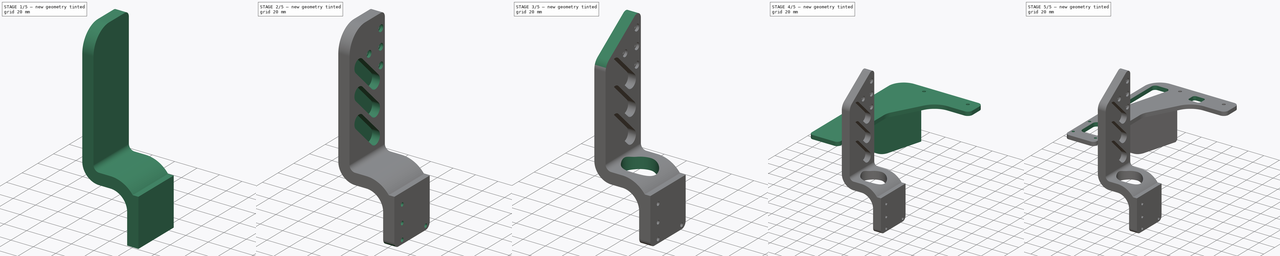
[diagram: build sequence overview — one tinted view per stage of 5, left to right]
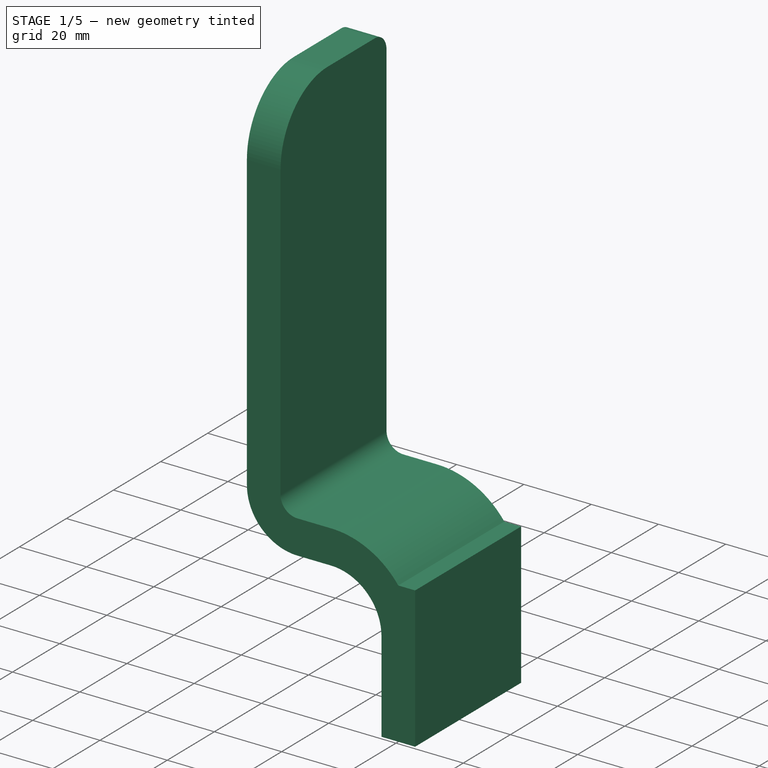
[diagram: stage 1 of 5 — iso view after this stage's code; geometry added in this stage tinted green]
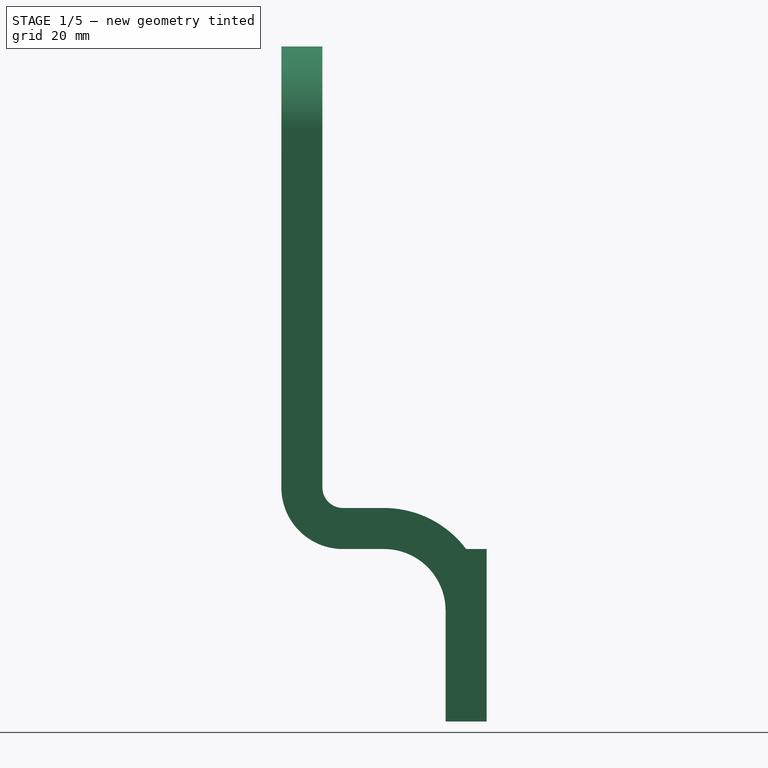
[diagram: stage 1 of 5 — front view after this stage's code; geometry added in this stage tinted green]
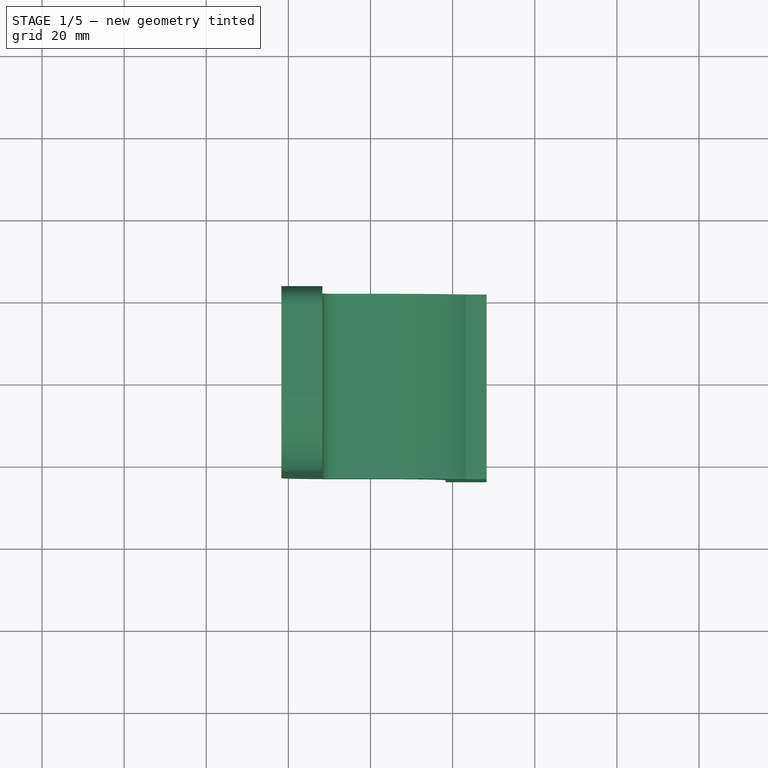
[diagram: stage 1 of 5 — top view after this stage's code; geometry added in this stage tinted green]
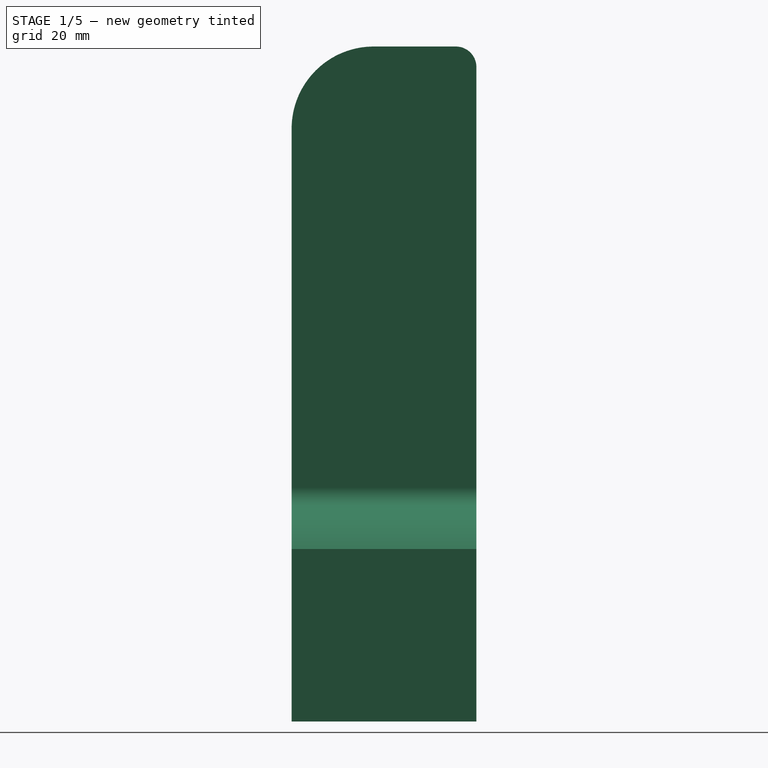
[diagram: stage 1 of 5 — right view after this stage's code; geometry added in this stage tinted green]
FCSTD DOCUMENT  (FreeCAD 0.21R33771 (Git))
Label: DD_005a_5Axis_Arms
License: All rights reserved
LicenseURL: http://en.wikipedia.org/wiki/All_rights_reserved
objects: Sketcher::SketchObject×14, PartDesign::Fillet×8, PartDesign::Pocket×4, PartDesign::Pad×3, PartDesign::Hole×3, PartDesign::SubShapeBinder×2, PartDesign::Chamfer×2, PartDesign::Body×2, PartDesign::AdditivePipe×1, PartDesign::LinearPattern×1
note: 61 computed .brp shape members not serialized (recipe doc carries the construction recipe); baked Part::Feature solids carry a one-line shape summary decoded from their .brp

FEATURE [Sketcher::SketchObject] Sketch004
  FullyConstrained = true
  MapMode = 5
  Placement = pos=(150.634,-41.8883,0) rot=(-0.47331,0.622887,0.622887;4.02573rad)
  Support = -> [Pocket]
FEATURE [PartDesign::Body] Body  label="Zfix"
  Group = -> [Binder,Sketch,Pad,Fillet,Sketch001,Pad001,Chamfer,Fillet001,Chamfer001,Fillet002,Sketch002,Hole,Sketch003,Pocket,Sketch004]
  Origin = -> Origin
  Tip = -> Pocket
FEATURE [Sketcher::SketchObject] Sketch005
  ExternalGeometry = -> [Binder001]
  FullyConstrained = true
  MapMode = 5
  Placement = pos=(208.293,6e-16,2.65251e-06) rot=(0.57735,-0.57735,-0.57735;2.0944rad)
  Support = -> [Binder001]
  sketch-geometry (4):
    g0: LineSegment StartX=183.724 StartY=175.56 StartZ=0 EndX=138.724 EndY=175.56 EndZ=0
    g1: LineSegment StartX=138.724 StartY=175.56 StartZ=0 EndX=138.724 EndY=133.56 EndZ=0
    g2: LineSegment StartX=138.724 StartY=133.56 StartZ=0 EndX=183.724 EndY=133.56 EndZ=0
    g3: LineSegment StartX=183.724 StartY=133.56 StartZ=0 EndX=183.724 EndY=175.56 EndZ=0
  constraints (11):
    c: Coincident(g0,g1)
    c: Coincident(g1,g2)
    c: Coincident(g2,g3)
    c: Coincident(g3,g0)
    c: Horizontal(g0)
    c: Horizontal(g2)
    c: Vertical(g1)
    c: Vertical(g3)
    c: Coincident(g0,g-4)
    c: PointOnObject(g1,g-3)
    c: DistanceX(g0,g0) = 45
FEATURE [PartDesign::Pad] Pad002
  Direction = (-1,2e-16,-1.27346e-08)
  Length = 10
  Length2 = 10
  Profile = -> Sketch005
  ReferenceAxis = -> Sketch005 [N_Axis]
  Type = 0
FEATURE [Sketcher::SketchObject] Sketch006
  ExternalGeometry = -> [Pad002,Binder001]
  FullyConstrained = false
  MapMode = 5
  Placement = pos=(-4.04e-14,-183.724,0) rot=(1,0,0;1.5708rad)
  Support = -> [Pad002]
  sketch-geometry (7):
    g0: LineSegment StartX=198.293 StartY=157.562 StartZ=0 EndX=198.293 EndY=160.56 EndZ=0
    g1: LineSegment StartX=183.293 StartY=175.56 StartZ=0 EndX=173.293 EndY=175.56 EndZ=0
    g2: LineSegment StartX=158.293 StartY=190.56 StartZ=0 EndX=158.293 EndY=297.948 EndZ=0
    g3: ArcOfCircle CenterX=183.293 CenterY=160.56 CenterZ=0 NormalX=0 NormalY=0 NormalZ=1 AngleXU=0 Radius=15 StartAngle=7e-16 EndAngle=1.5708
    g4: GeomPoint X=198.293 Y=175.56 Z=0
    g5: ArcOfCircle CenterX=173.293 CenterY=190.56 CenterZ=0 NormalX=0 NormalY=0 NormalZ=1 AngleXU=0 Radius=15 StartAngle=3.14159 EndAngle=4.71239
    g6: GeomPoint X=158.293 Y=175.56 Z=0
  constraints (15):
    c: Coincident(g4,g-3)
    c: Vertical(g0)
    c: Vertical(g2)
    c: Horizontal(g1)
    c: Vertical(g-4,g2)
    c: PointOnObject(g4,g0)
    c: PointOnObject(g4,g1)
    c: Tangent(g0,g3) = -1.5708
    c: Tangent(g1,g3) = -1.5708
    c: PointOnObject(g6,g1)
    c: PointOnObject(g6,g2)
    c: Tangent(g1,g5) = 1.5708
    c: Tangent(g2,g5) = 1.5708
    c: Equal(g5,g3)
    c: Radius(g3) = 15
FEATURE [Sketcher::SketchObject] Sketch007
  AttachmentOffset = pos=(0,0,-18) rot=(0,0,1;0rad)
  ExternalGeometry = -> [Pad002]
  FullyConstrained = true
  MapMode = 5
  Placement = pos=(-2.00646e-06,0,157.56) rot=(0,0,1;0rad)
  Support = -> [Pad002]
  sketch-geometry (4):
    g0: LineSegment StartX=208.293 StartY=-138.724 StartZ=0 EndX=198.293 EndY=-138.724 EndZ=0
    g1: LineSegment StartX=198.293 StartY=-138.724 StartZ=0 EndX=198.293 EndY=-183.724 EndZ=0
    g2: LineSegment StartX=198.293 StartY=-183.724 StartZ=0 EndX=208.293 EndY=-183.724 EndZ=0
    g3: LineSegment StartX=208.293 StartY=-183.724 StartZ=0 EndX=208.293 EndY=-138.724 EndZ=0
  constraints (10):
    c: Coincident(g0,g1)
    c: Coincident(g1,g2)
    c: Coincident(g2,g3)
    c: Coincident(g3,g0)
    c: Horizontal(g0)
    c: Horizontal(g2)
    c: Vertical(g1)
    c: Vertical(g3)
    c: Coincident(g0,g-3)
    c: Coincident(g1,g-4)
FEATURE [PartDesign::AdditivePipe] AdditivePipe
  AuxilleryCurvelinear = true
  AuxillerySpineTangent = false
  BaseFeature = -> Pad002
  Binormal = (0,0,0)
  Mode = 0
  Profile = -> Sketch007
  Spine = -> Sketch006
  SpineTangent = false
  Transformation = 0
  Transition = 0
FEATURE [PartDesign::Fillet] Fillet003
  Base = -> AdditivePipe [Edge61]
  BaseFeature = -> AdditivePipe
  Radius = 20
  SupportTransform = false
  UseAllEdges = false
FEATURE [PartDesign::Fillet] Fillet004
  Base = -> Fillet003 [Edge15]
  BaseFeature = -> Fillet003
  Radius = 5
  SupportTransform = false
  UseAllEdges = false
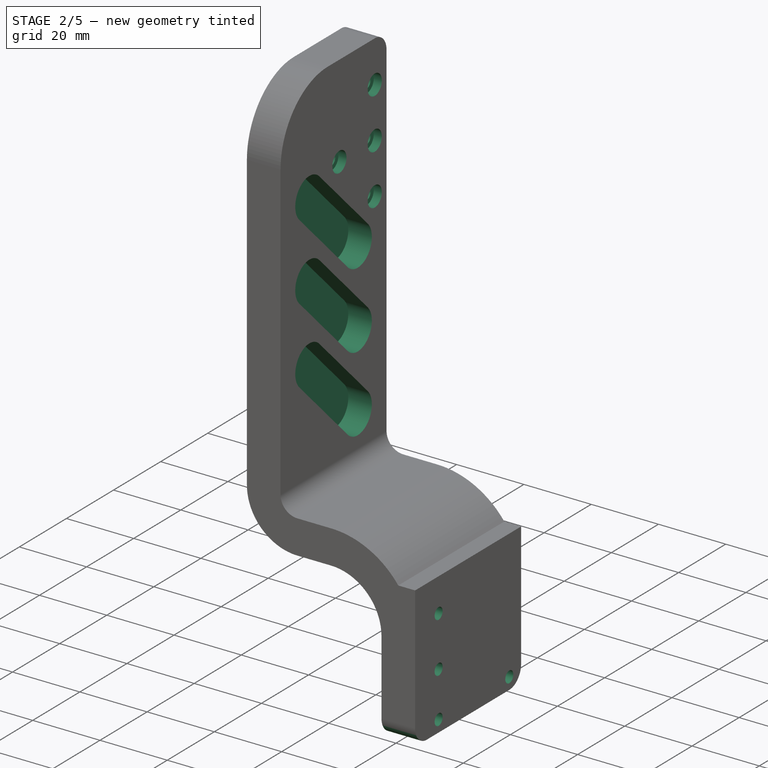
[diagram: stage 2 of 5 — iso view after this stage's code; geometry added in this stage tinted green]
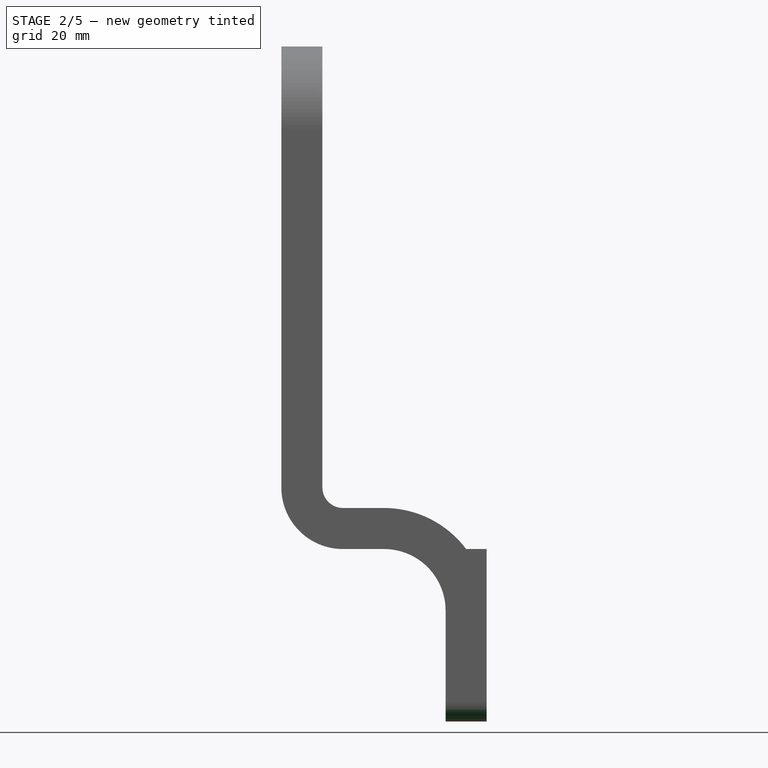
[diagram: stage 2 of 5 — front view after this stage's code; geometry added in this stage tinted green]
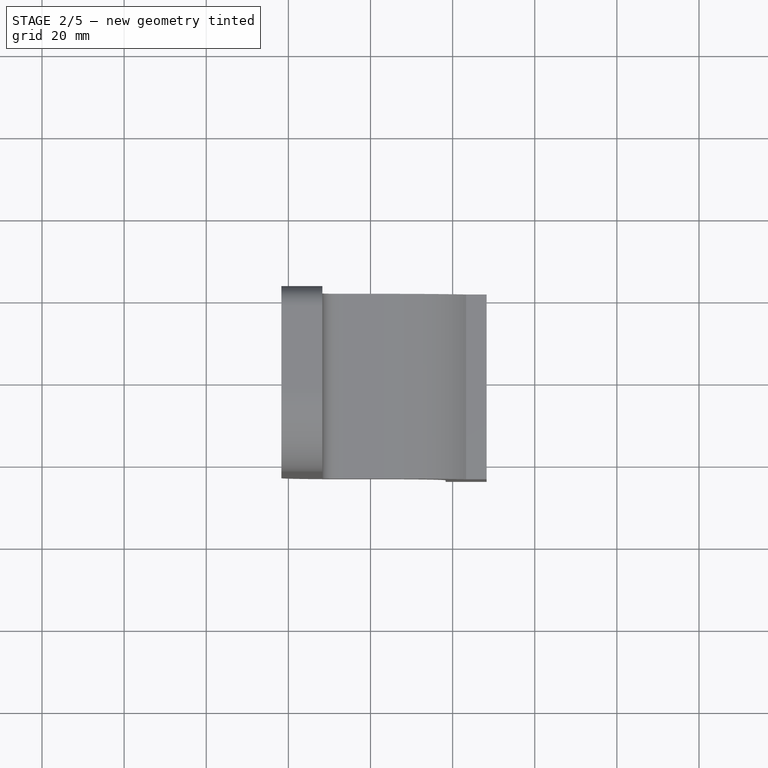
[diagram: stage 2 of 5 — top view after this stage's code; geometry added in this stage tinted green]
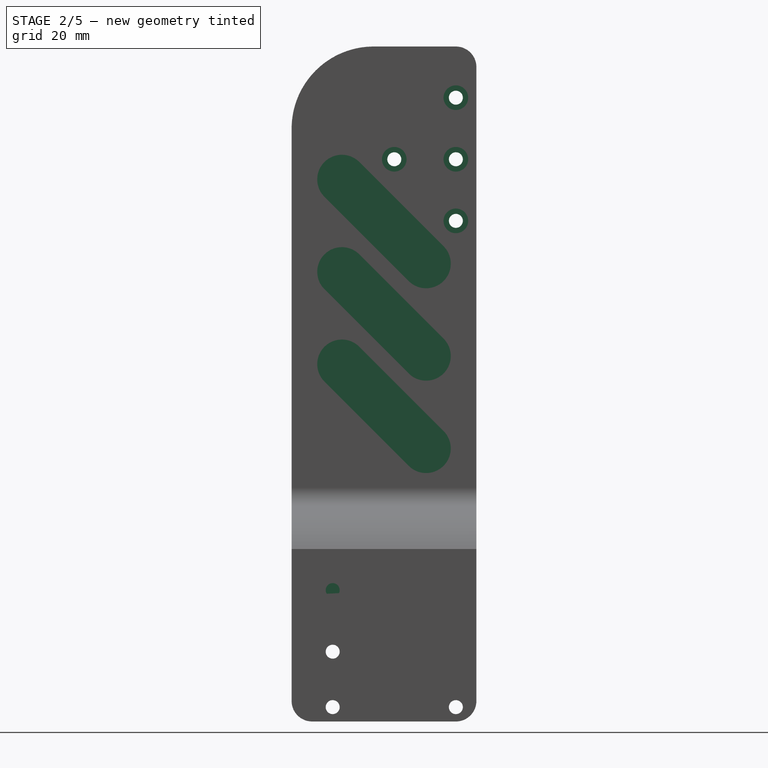
[diagram: stage 2 of 5 — right view after this stage's code; geometry added in this stage tinted green]
FEATURE [PartDesign::Fillet] Fillet005
  Base = -> Fillet004 [Edge67,Edge69]
  BaseFeature = -> Fillet004
  Radius = 5
  SupportTransform = false
  UseAllEdges = false
FEATURE [Sketcher::SketchObject] Sketch008
  FullyConstrained = true
  MapMode = 5
  Placement = pos=(0,-183.724,0) rot=(1,0,0;1.5708rad)
  Support = -> [Fillet005]
FEATURE [Sketcher::SketchObject] Sketch009
  ExternalGeometry = -> [Binder001]
  FullyConstrained = false
  MapMode = 5
  Placement = pos=(198.293,0,2.52517e-06) rot=(0.57735,-0.57735,-0.57735;2.0944rad)
  Support = -> [Fillet005]
  sketch-geometry (4):
    g0: Circle CenterX=173.724 CenterY=165.56 CenterZ=0 NormalX=0 NormalY=0 NormalZ=1 AngleXU=0 Radius=0.899481
    g1: Circle CenterX=173.724 CenterY=150.56 CenterZ=0 NormalX=0 NormalY=0 NormalZ=1 AngleXU=0 Radius=1.27588
    g2: Circle CenterX=173.724 CenterY=137.06 CenterZ=0 NormalX=0 NormalY=0 NormalZ=1 AngleXU=0 Radius=0.845903
    g3: Circle CenterX=143.724 CenterY=137.06 CenterZ=0 NormalX=0 NormalY=0 NormalZ=1 AngleXU=0 Radius=0.639343
  constraints (4):
    c: Coincident(g0,g-6)
    c: Coincident(g1,g-7)
    c: Coincident(g2,g-5)
    c: Coincident(g3,g-4)
FEATURE [PartDesign::Hole] Hole001
  BaseFeature = -> Fillet005
  CustomThreadClearance = 0
  Depth = 25
  DepthType = 0
  Diameter = 3.4
  DrillForDepth = false
  DrillPoint = 1
  DrillPointAngle = 118
  HoleCutCountersinkAngle = 90
  HoleCutCustomValues = false
  HoleCutDepth = 2.4
  HoleCutDiameter = 6
  HoleCutType = 4
  ModelThread = false
  Profile = -> Sketch009
  Tapered = false
  TaperedAngle = 90
  ThreadClass = 0
  ThreadDepth = 25
  ThreadDepthType = 0
  ThreadDirection = 0
  ThreadFit = 0
  ThreadSize = 9
  ThreadType = 1
  Threaded = false
  UseCustomThreadClearance = false
FEATURE [Sketcher::SketchObject] Sketch010
  ExternalGeometry = -> [Binder001]
  FullyConstrained = false
  MapMode = 5
  Placement = pos=(168.293,0,0) rot=(0.57735,0.57735,0.57735;2.0944rad)
  Support = -> [Hole001]
  sketch-geometry (4):
    g0: Circle CenterX=-143.724 CenterY=285.484 CenterZ=0 NormalX=0 NormalY=0 NormalZ=1 AngleXU=0 Radius=0.961945
    g1: Circle CenterX=-158.724 CenterY=270.484 CenterZ=0 NormalX=0 NormalY=0 NormalZ=1 AngleXU=0 Radius=0.955862
    g2: Circle CenterX=-143.724 CenterY=270.484 CenterZ=0 NormalX=0 NormalY=0 NormalZ=1 AngleXU=0 Radius=0.757311
    g3: Circle CenterX=-143.724 CenterY=255.484 CenterZ=0 NormalX=0 NormalY=0 NormalZ=1 AngleXU=0 Radius=1.35825
  constraints (4):
    c: Coincident(g0,g-3)
    c: Coincident(g1,g-4)
    c: Coincident(g2,g-6)
    c: Coincident(g3,g-5)
FEATURE [PartDesign::Hole] Hole002
  BaseFeature = -> Hole001
  CustomThreadClearance = 0
  Depth = 25
  DepthType = 0
  Diameter = 3.4
  DrillForDepth = false
  DrillPoint = 1
  DrillPointAngle = 118
  HoleCutCountersinkAngle = 90
  HoleCutCustomValues = false
  HoleCutDepth = 2.4
  HoleCutDiameter = 6
  HoleCutType = 4
  ModelThread = false
  Profile = -> Sketch010
  Tapered = false
  TaperedAngle = 90
  ThreadClass = 0
  ThreadDepth = 25
  ThreadDepthType = 0
  ThreadDirection = 0
  ThreadFit = 0
  ThreadSize = 9
  ThreadType = 1
  Threaded = false
  UseCustomThreadClearance = false
FEATURE [Sketcher::SketchObject] Sketch011
  ExternalGeometry = -> [Hole002]
  FullyConstrained = false
  MapMode = 5
  Placement = pos=(168.293,0,0) rot=(0.57735,0.57735,0.57735;2.0944rad)
  Support = -> [Hole002]
  sketch-geometry (4):
    g0: ArcOfCircle CenterX=-171.481 CenterY=220.581 CenterZ=0 NormalX=0 NormalY=0 NormalZ=1 AngleXU=0 Radius=6 StartAngle=0.785398 EndAngle=3.92699
    g1: ArcOfCircle CenterX=-150.966 CenterY=200.066 CenterZ=0 NormalX=0 NormalY=0 NormalZ=1 AngleXU=0 Radius=6 StartAngle=3.92699 EndAngle=7.06858
    g2: LineSegment StartX=-175.724 StartY=216.338 StartZ=0 EndX=-155.209 EndY=195.824 EndZ=0
    g3: LineSegment StartX=-146.724 StartY=204.309 StartZ=0 EndX=-167.238 EndY=224.824 EndZ=0
  constraints (9):
    c: Tangent(g0,g2) = -1.5708
    c: Tangent(g2,g1) = -1.5708
    c: Tangent(g1,g3) = -1.5708
    c: Tangent(g3,g0) = -1.5708
    c: Equal(g0,g1)
    c: Angle(g-3,g3) = 0.785398
    c: Distance(g1,g-3) = 8
    c: Distance(g0,g-4) = 8
    c: Radius(g1) = 6
FEATURE [PartDesign::Pocket] Pocket001
  BaseFeature = -> Hole002
  Direction = (-1,0,0)
  Length = 7
  Length2 = 5
  Profile = -> Sketch011
  ReferenceAxis = -> Sketch011 [N_Axis]
  Type = 0
FEATURE [PartDesign::LinearPattern] LinearPattern
  BaseFeature = -> Pocket001
  Direction = -> Z_Axis001
  Length = 45
  Occurrences = 3
  Originals = -> [Pocket001]
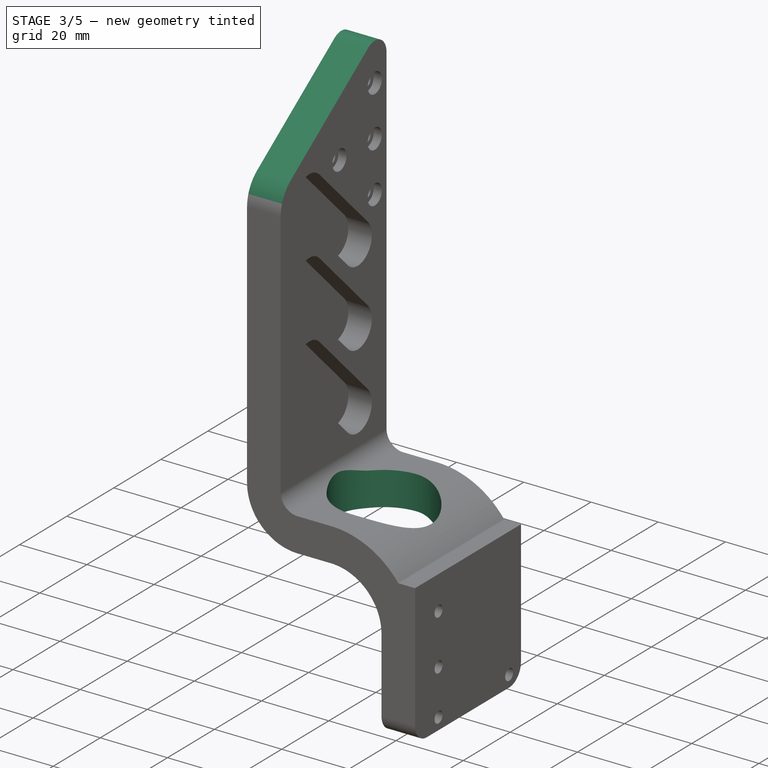
[diagram: stage 3 of 5 — iso view after this stage's code; geometry added in this stage tinted green]
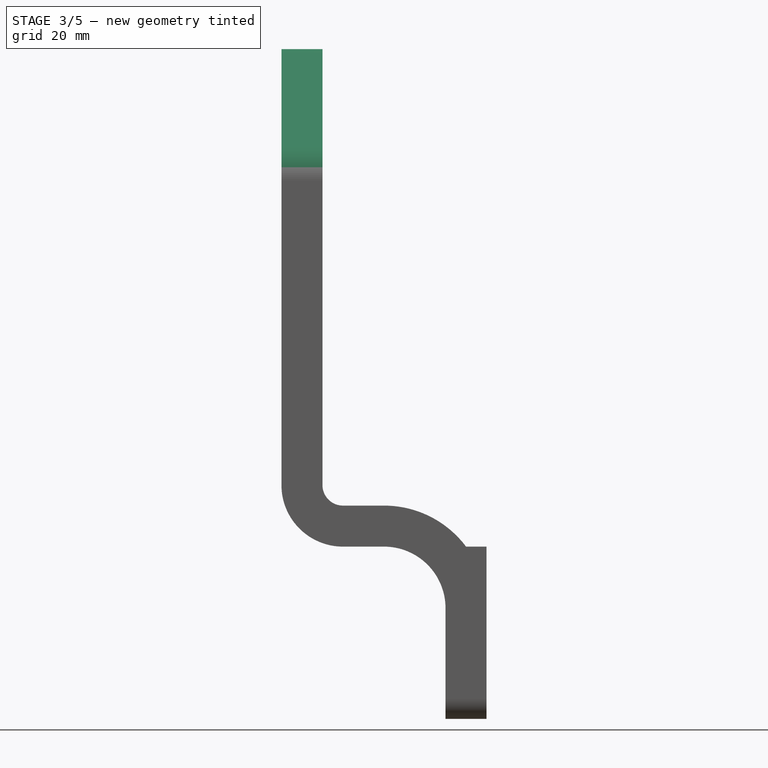
[diagram: stage 3 of 5 — front view after this stage's code; geometry added in this stage tinted green]
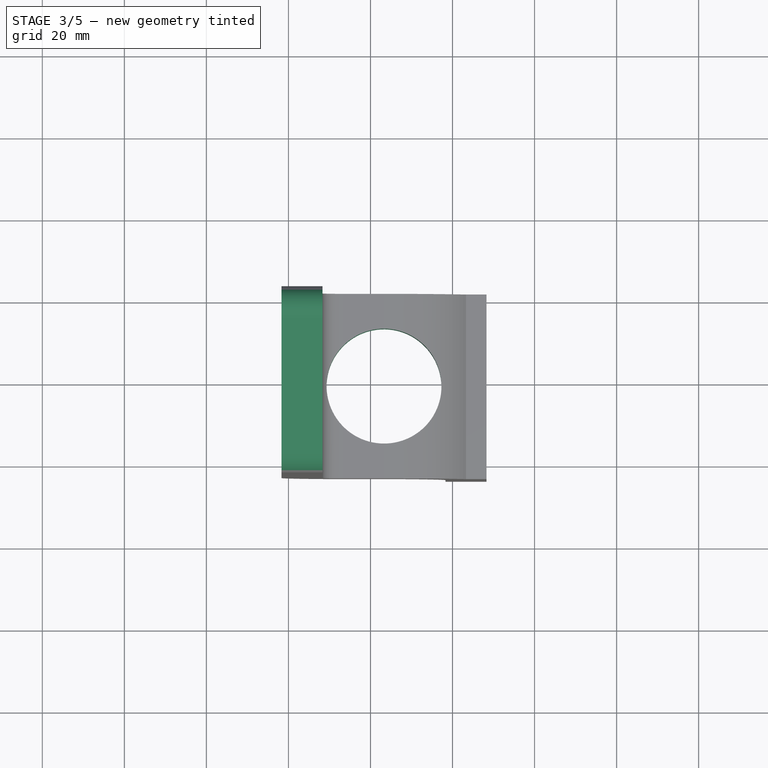
[diagram: stage 3 of 5 — top view after this stage's code; geometry added in this stage tinted green]
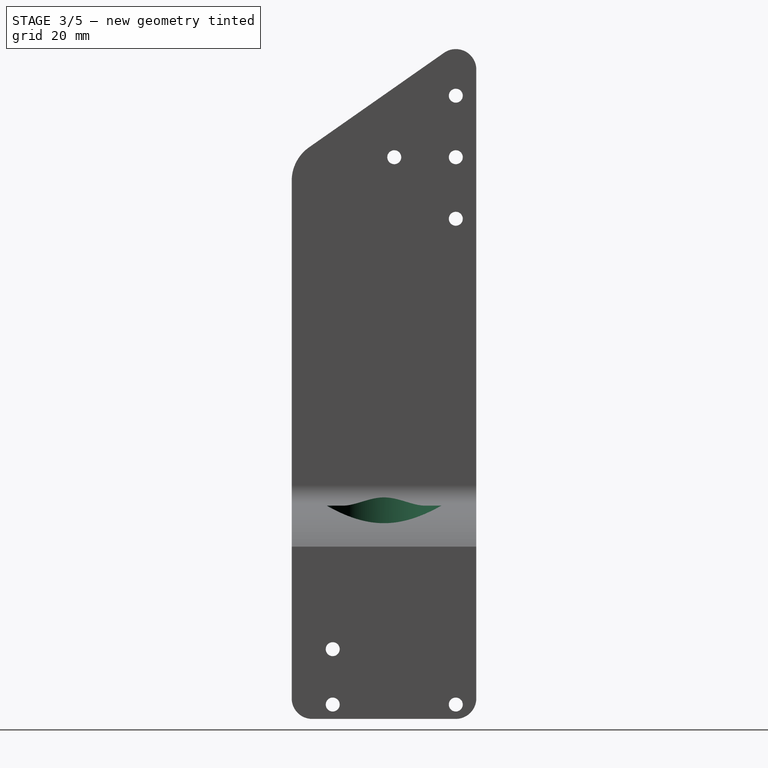
[diagram: stage 3 of 5 — right view after this stage's code; geometry added in this stage tinted green]
FEATURE [Sketcher::SketchObject] Sketch012
  ExternalGeometry = -> [LinearPattern]
  FullyConstrained = false
  MapMode = 5
  Placement = pos=(168.293,0,0) rot=(0.57735,0.57735,0.57735;2.0944rad)
  Support = -> [LinearPattern]
  sketch-geometry (3):
    g0: LineSegment StartX=-143.724 StartY=297.947 StartZ=0 EndX=-183.724 EndY=269.938 EndZ=0
    g1: LineSegment StartX=-183.724 StartY=269.938 StartZ=0 EndX=-199.04 EndY=317.494 EndZ=0
    g2: LineSegment StartX=-143.724 StartY=297.947 StartZ=0 EndX=-199.04 EndY=317.494 EndZ=0
  constraints (6):
    c: Coincident(g0,g-3)
    c: PointOnObject(g0,g-4)
    c: Coincident(g1,g0)
    c: Coincident(g2,g0)
    c: Coincident(g2,g1)
    c: Angle(g0,g-5) = 0.959931
FEATURE [PartDesign::Pocket] Pocket002
  BaseFeature = -> LinearPattern
  Direction = (-1,0,0)
  Length = 5
  Length2 = 5
  Profile = -> Sketch012
  ReferenceAxis = -> Sketch012 [N_Axis]
  Type = 1
FEATURE [PartDesign::Fillet] Fillet006
  Base = -> Pocket002 [Edge95]
  BaseFeature = -> Pocket002
  Radius = 10
  SupportTransform = false
  UseAllEdges = false
FEATURE [PartDesign::Fillet] Fillet007
  Base = -> Fillet006 [Edge13]
  BaseFeature = -> Fillet006
  Radius = 5
  SupportTransform = false
  UseAllEdges = false
FEATURE [Sketcher::SketchObject] Sketch013
  ExternalGeometry = -> [Fillet007]
  FullyConstrained = true
  MapMode = 5
  Placement = pos=(0,8.16e-14,185.56) rot=(0,0,1;0rad)
  Support = -> [Fillet007]
  sketch-geometry (1):
    g0: Circle CenterX=183.294 CenterY=-161.224 CenterZ=0 NormalX=0 NormalY=0 NormalZ=1 AngleXU=0 Radius=14
  constraints (2):
    c: Radius(g0) = 14
    c: Symmetric(g-3,g-3,g0)
FEATURE [PartDesign::Pocket] Pocket003
  BaseFeature = -> Fillet007
  Direction = (0,-4e-16,-1)
  Length = 5
  Length2 = 5
  Midplane = true
  Profile = -> Sketch013
  ReferenceAxis = -> Sketch013 [N_Axis]
  Type = 1
FEATURE [PartDesign::Body] Body001  label="square"
  Group = -> [Binder001,Sketch005,Pad002,Sketch006,Sketch007,AdditivePipe,Fillet003,Fillet004,Fillet005,Sketch008,Sketch009,Hole001,Sketch010,Hole002,Sketch011,Pocket001,LinearPattern,Sketch012,Pocket002,Fillet006,Fillet007,Sketch013,Pocket003]
  Origin = -> Origin001
  Tip = -> Pocket003
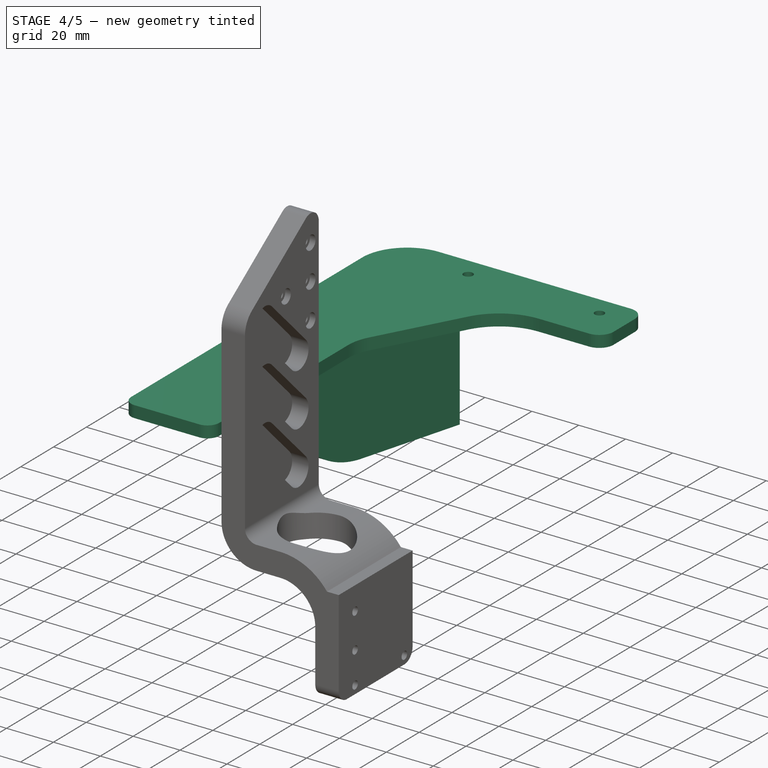
[diagram: stage 4 of 5 — iso view after this stage's code; geometry added in this stage tinted green]
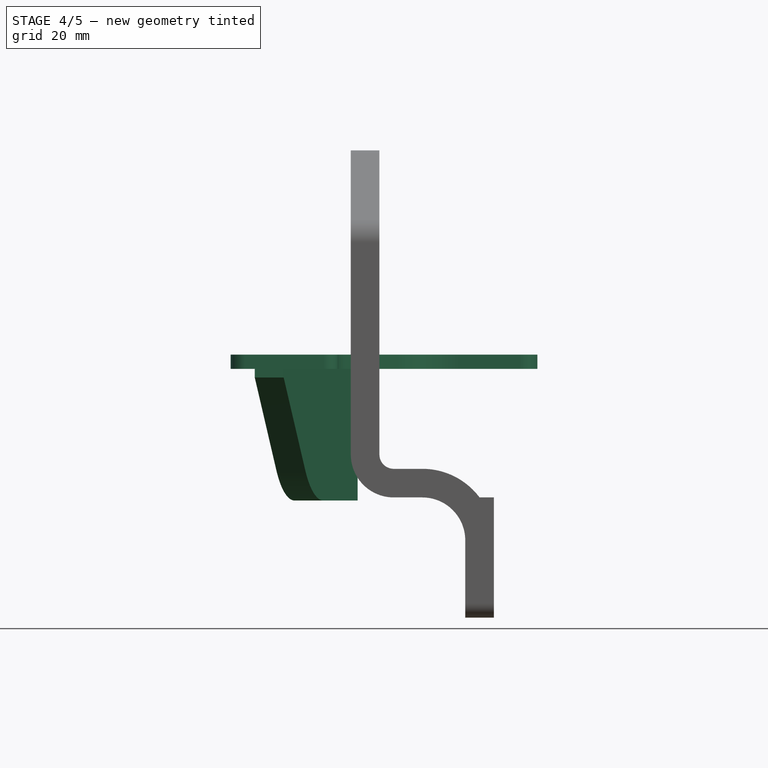
[diagram: stage 4 of 5 — front view after this stage's code; geometry added in this stage tinted green]
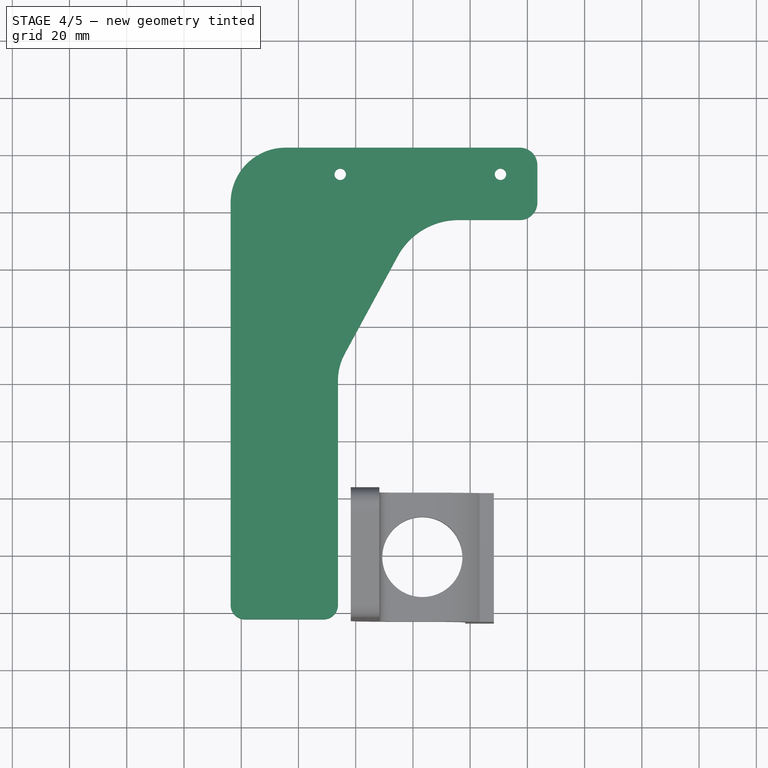
[diagram: stage 4 of 5 — top view after this stage's code; geometry added in this stage tinted green]
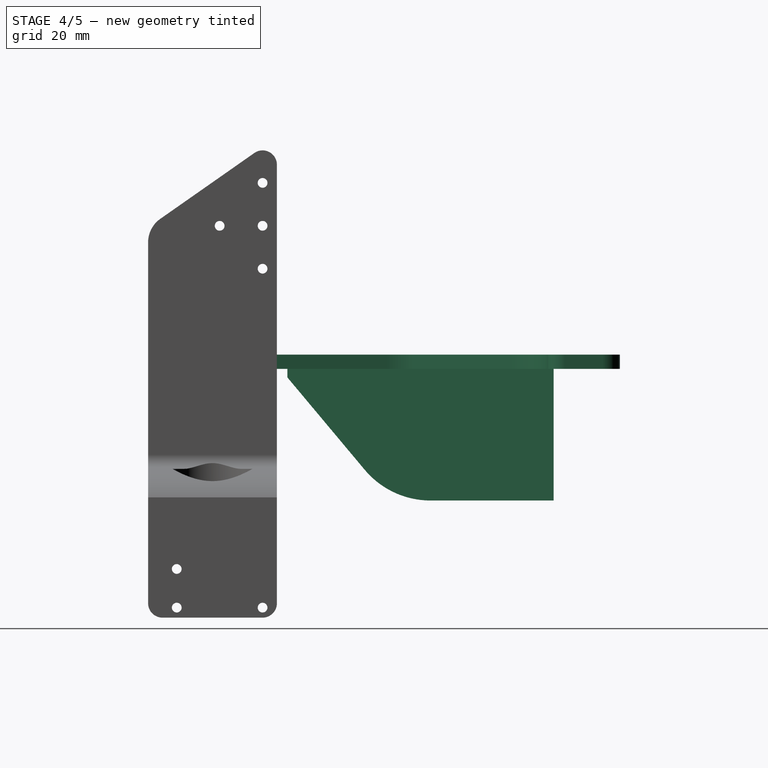
[diagram: stage 4 of 5 — right view after this stage's code; geometry added in this stage tinted green]
FEATURE [PartDesign::SubShapeBinder] Binder
  BindCopyOnChange = 0
  BindMode = 2
  ClaimChildren = false
  Context = -> Body [Binder.]
  Fuse = false
  MakeFace = true
  OffsetFill = false
  OffsetIntersection = false
  OffsetJoinType = 0
  OffsetOpenResult = false
  PartialLoad = false
  Relative = true
  _Version = 2
FEATURE [Sketcher::SketchObject] Sketch
  ExternalGeometry = -> [Binder]
  FullyConstrained = false
  MapMode = 5
  Placement = pos=(0,0,220.484) rot=(0,0,1;0rad)
  Support = -> [Binder]
  sketch-geometry (19):
    g0: Circle CenterX=154.6 CenterY=-28.1604 CenterZ=0 NormalX=0 NormalY=0 NormalZ=1 AngleXU=0 Radius=2
    g1: Circle CenterX=210.6 CenterY=-28.1604 CenterZ=0 NormalX=0 NormalY=0 NormalZ=1 AngleXU=0 Radius=2
    g2: LineSegment StartX=135.526 StartY=-18.8613 StartZ=0 EndX=217.385 EndY=-18.8613 EndZ=0
    g3: LineSegment StartX=223.498 StartY=-24.9748 StartZ=0 EndX=223.498 EndY=-37.9905 EndZ=0
    g4: LineSegment StartX=217.385 StartY=-44.104 StartZ=0 EndX=195.956 EndY=-44.104 EndZ=0
    g5: LineSegment StartX=174.688 StartY=-56.7608 StartZ=0 EndX=156.179 EndY=-90.8709 EndZ=0
    g6: LineSegment StartX=153.803 StartY=-100.231 StartZ=0 EndX=153.803 EndY=-183.724 EndZ=0
    g7: LineSegment StartX=153.803 StartY=-183.724 StartZ=0 EndX=116.293 EndY=-183.724 EndZ=0
    g8: LineSegment StartX=116.293 StartY=-183.724 StartZ=0 EndX=116.293 EndY=-38.0948 EndZ=0
    g9: ArcOfCircle CenterX=135.526 CenterY=-38.0948 CenterZ=0 NormalX=0 NormalY=0 NormalZ=1 AngleXU=0 Radius=19.2334 StartAngle=1.5708 EndAngle=3.14159
    g10: GeomPoint X=116.293 Y=-18.8613 Z=0
    g11: ArcOfCircle CenterX=217.385 CenterY=-24.9748 CenterZ=0 NormalX=0 NormalY=0 NormalZ=1 AngleXU=0 Radius=6.11349 StartAngle=0 EndAngle=1.5708
    g12: GeomPoint X=223.498 Y=-18.8613 Z=0
    g13: ArcOfCircle CenterX=217.385 CenterY=-37.9905 CenterZ=0 NormalX=0 NormalY=0 NormalZ=1 AngleXU=0 Radius=6.11349 StartAngle=4.71239 EndAngle=6.28319
    g14: GeomPoint X=223.498 Y=-44.104 Z=0
    g15: ArcOfCircle CenterX=195.956 CenterY=-68.3014 CenterZ=0 NormalX=0 NormalY=0 NormalZ=1 AngleXU=0 Radius=24.1975 StartAngle=1.5708 EndAngle=2.64443
    g16: GeomPoint X=181.556 Y=-44.104 Z=0
    g17: ArcOfCircle CenterX=173.429 CenterY=-100.231 CenterZ=0 NormalX=0 NormalY=0 NormalZ=1 AngleXU=0 Radius=19.6258 StartAngle=2.64443 EndAngle=3.14159
    g18: GeomPoint X=153.803 Y=-95.2495 Z=0
  constraints (34):
    c: Coincident(g0,g-3)
    c: Coincident(g1,g-4)
    c: Equal(g0,g1)
    c: Radius(g0) = 2
    c: Vertical(g3)
    c: Horizontal(g4)
    c: Vertical(g6)
    c: Coincident(g6,g7)
    c: Coincident(g7,g-5)
    c: Horizontal(g7)
    c: Coincident(g7,g8)
    c: Vertical(g8)
    c: PointOnObject(g10,g8)
    c: PointOnObject(g10,g2)
    c: Tangent(g8,g9) = 1.5708
    c: Tangent(g2,g9) = 1.5708
    c: PointOnObject(g12,g2)
    c: PointOnObject(g12,g3)
    c: Tangent(g2,g11) = 1.5708
    c: Tangent(g3,g11) = 1.5708
    c: PointOnObject(g14,g4)
    c: PointOnObject(g14,g3)
    c: Tangent(g4,g13) = 1.5708
    c: Tangent(g3,g13) = 1.5708
    c: PointOnObject(g16,g5)
    c: PointOnObject(g16,g4)
    c: Tangent(g5,g15) = -1.5708
    c: Tangent(g4,g15) = -1.5708
    c: PointOnObject(g18,g6)
    c: PointOnObject(g18,g5)
    c: Tangent(g6,g17) = -1.5708
    c: Tangent(g5,g17) = -1.5708
    c: Equal(g11,g13)
    c: Horizontal(g2)
FEATURE [PartDesign::Pad] Pad
  Direction = (0,0,1)
  Length = 5
  Length2 = 10
  Profile = -> Sketch
  ReferenceAxis = -> Sketch [N_Axis]
  Type = 0
FEATURE [PartDesign::Fillet] Fillet
  Base = -> Pad [Edge17,Edge14]
  BaseFeature = -> Pad
  Radius = 5
  SupportTransform = false
  UseAllEdges = false
FEATURE [Sketcher::SketchObject] Sketch001
  ExternalGeometry = -> [Binder]
  FullyConstrained = false
  MapMode = 5
  Placement = pos=(0,0,220.484) rot=(1,0,0;3.14159rad)
  Support = -> [Fillet]
  sketch-geometry (4):
    g0: LineSegment StartX=160.7 StartY=42.0104 StartZ=0 EndX=134.83 EndY=135.04 EndZ=0
    g1: LineSegment StartX=134.83 StartY=135.04 StartZ=0 EndX=124.73 EndY=135.04 EndZ=0
    g2: LineSegment StartX=124.73 StartY=135.04 StartZ=0 EndX=150.6 EndY=42.0104 EndZ=0
    g3: LineSegment StartX=150.6 StartY=42.0104 StartZ=0 EndX=160.7 EndY=42.0104 EndZ=0
  constraints (8):
    c: Coincident(g-3,g0)
    c: Coincident(g0,g1)
    c: Coincident(g1,g2)
    c: Coincident(g2,g-3)
    c: Coincident(g2,g3)
    c: Coincident(g3,g0)
    c: Equal(g1,g3)
    c: Horizontal(g1)
FEATURE [PartDesign::Pad] Pad001
  BaseFeature = -> Fillet
  Direction = (0,0,-1)
  Length = 46
  Length2 = 10
  Profile = -> Sketch001
  ReferenceAxis = -> Sketch001 [N_Axis]
  Type = 0
FEATURE [PartDesign::Chamfer] Chamfer
  Angle = 45
  Base = -> Pad001 [Edge57]
  BaseFeature = -> Pad001
  ChamferType = 1
  FlipDirection = false
  Size = 43
  Size2 = 36
  SupportTransform = false
  UseAllEdges = false
FEATURE [PartDesign::Fillet] Fillet001
  Base = -> Chamfer [Edge10]
  BaseFeature = -> Chamfer
  Radius = 30
  SupportTransform = false
  UseAllEdges = false
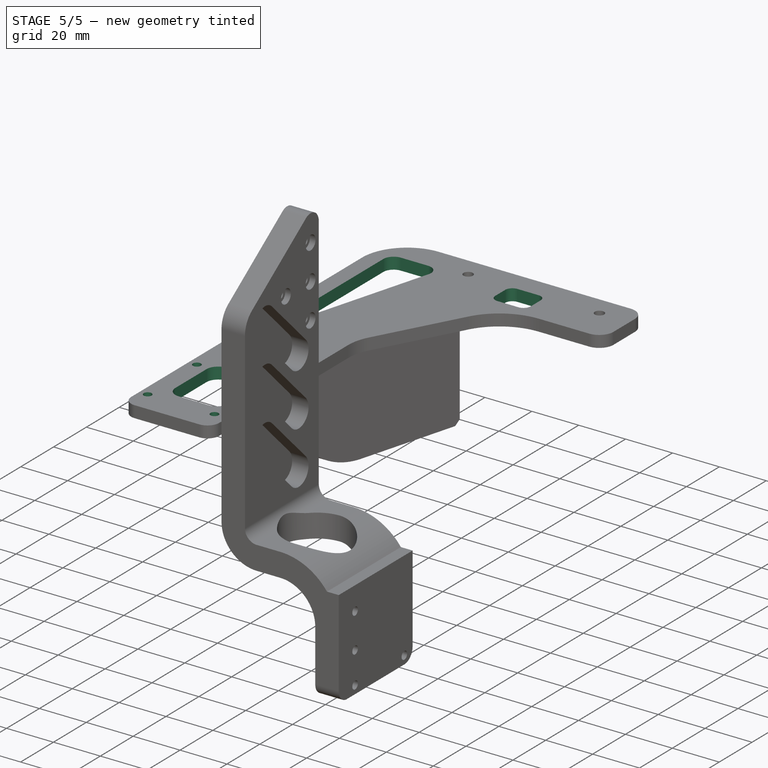
[diagram: stage 5 of 5 — iso view after this stage's code; geometry added in this stage tinted green]
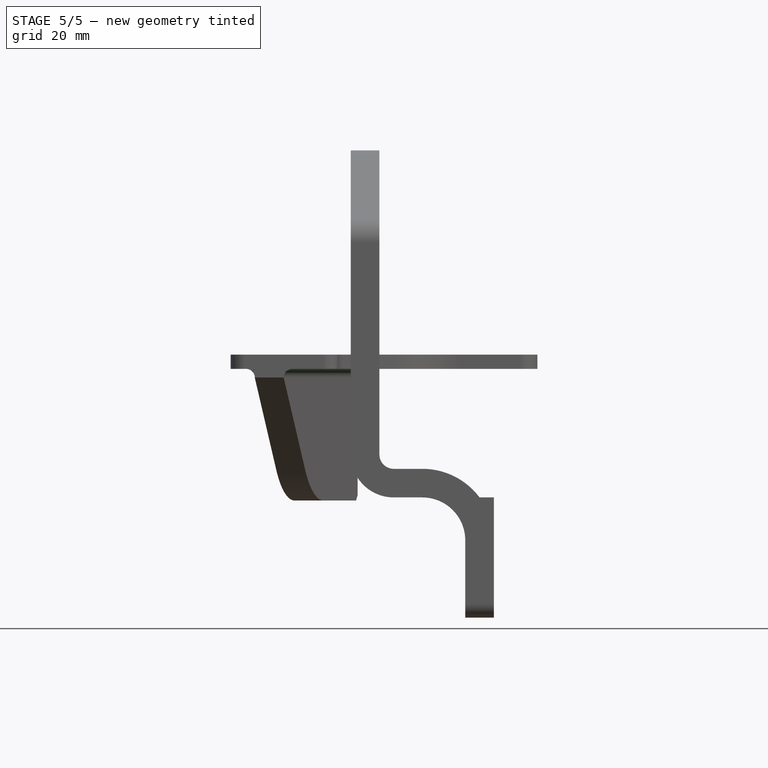
[diagram: stage 5 of 5 — front view after this stage's code; geometry added in this stage tinted green]
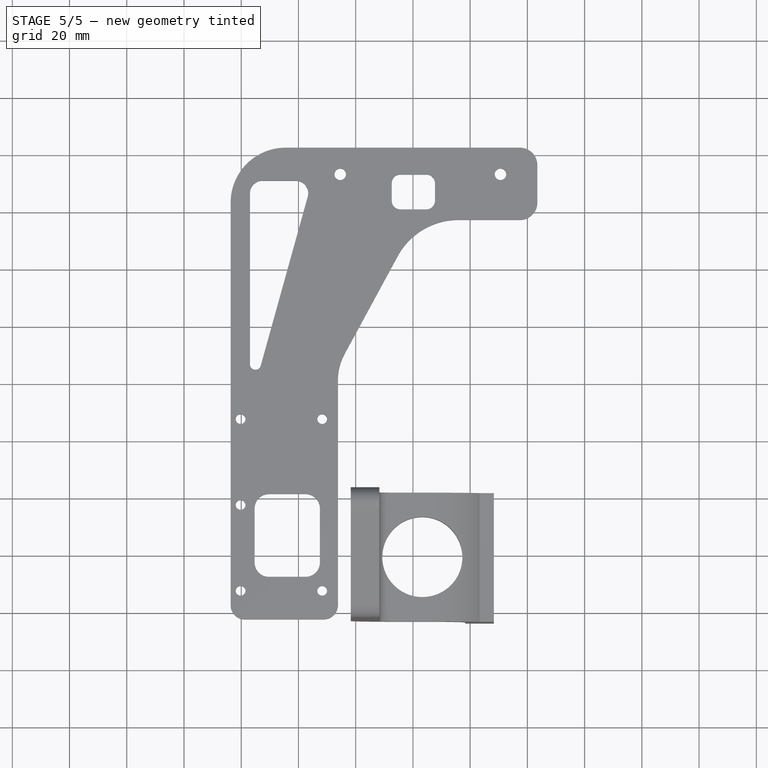
[diagram: stage 5 of 5 — top view after this stage's code; geometry added in this stage tinted green]
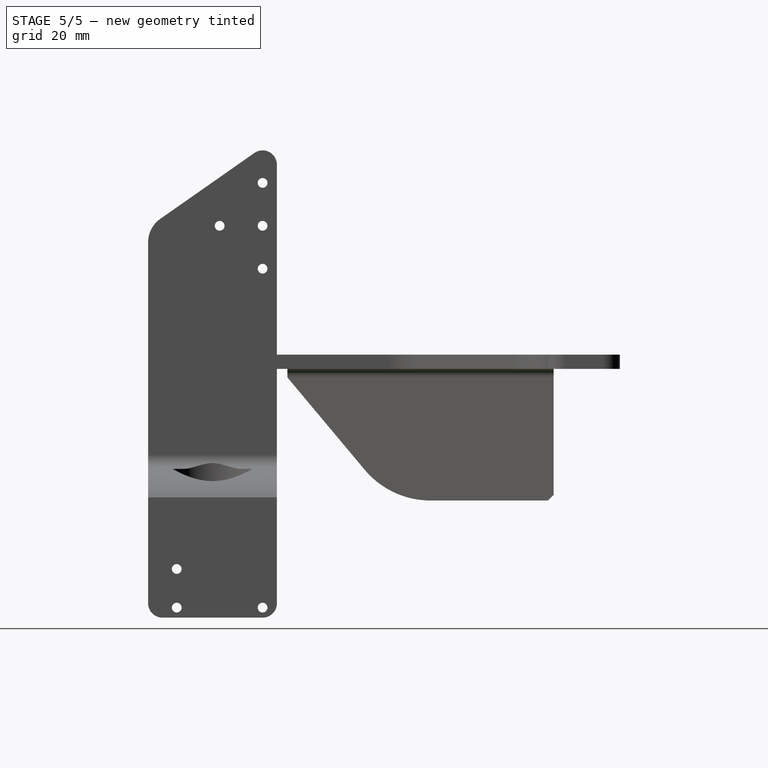
[diagram: stage 5 of 5 — right view after this stage's code; geometry added in this stage tinted green]
FEATURE [PartDesign::Chamfer] Chamfer001
  Angle = 45
  Base = -> Fillet001 [Edge15]
  BaseFeature = -> Fillet001
  ChamferType = 0
  FlipDirection = false
  Size = 2
  Size2 = 1
  SupportTransform = false
  UseAllEdges = false
FEATURE [PartDesign::Fillet] Fillet002
  Base = -> Chamfer001 [Edge6,Edge34]
  BaseFeature = -> Chamfer001
  Radius = 3
  SupportTransform = false
  UseAllEdges = false
FEATURE [Sketcher::SketchObject] Sketch002
  ExternalGeometry = -> [Binder]
  FullyConstrained = false
  MapMode = 5
  Placement = pos=(0,0,220.484) rot=(1,0,0;3.14159rad)
  Support = -> [Fillet002]
  sketch-geometry (5):
    g0: Circle CenterX=148.293 CenterY=173.724 CenterZ=0 NormalX=0 NormalY=0 NormalZ=1 AngleXU=0 Radius=1.0134
    g1: Circle CenterX=119.793 CenterY=173.724 CenterZ=0 NormalX=0 NormalY=0 NormalZ=1 AngleXU=0 Radius=0.871739
    g2: Circle CenterX=119.793 CenterY=143.724 CenterZ=0 NormalX=0 NormalY=0 NormalZ=1 AngleXU=0 Radius=1.16948
    g3: Circle CenterX=119.793 CenterY=113.724 CenterZ=0 NormalX=0 NormalY=0 NormalZ=1 AngleXU=0 Radius=1.01227
    g4: Circle CenterX=148.293 CenterY=113.724 CenterZ=0 NormalX=0 NormalY=0 NormalZ=1 AngleXU=0 Radius=1.29271
  constraints (5):
    c: Coincident(g0,g-4)
    c: Coincident(g1,g-3)
    c: Coincident(g2,g-5)
    c: Coincident(g3,g-7)
    c: Coincident(g4,g-6)
FEATURE [PartDesign::Hole] Hole
  BaseFeature = -> Fillet002
  CustomThreadClearance = 0
  Depth = 25
  DepthType = 0
  Diameter = 3.4
  DrillForDepth = false
  DrillPoint = 1
  DrillPointAngle = 118
  HoleCutCountersinkAngle = 90
  HoleCutCustomValues = false
  HoleCutDepth = 0
  HoleCutDiameter = 6.1
  HoleCutType = 0
  ModelThread = false
  Profile = -> Sketch002
  Tapered = false
  TaperedAngle = 90
  ThreadClass = 0
  ThreadDepth = 25
  ThreadDepthType = 0
  ThreadDirection = 0
  ThreadFit = 0
  ThreadSize = 9
  ThreadType = 1
  Threaded = false
  UseCustomThreadClearance = false
FEATURE [PartDesign::SubShapeBinder] Binder001
  BindCopyOnChange = 0
  BindMode = 2
  ClaimChildren = false
  Context = -> Body001 [Binder001.]
  Fuse = false
  MakeFace = true
  OffsetFill = false
  OffsetIntersection = false
  OffsetJoinType = 0
  OffsetOpenResult = false
  PartialLoad = false
  Relative = true
  _Version = 2
FEATURE [Sketcher::SketchObject] Sketch003
  ExternalGeometry = -> [Hole]
  FullyConstrained = false
  MapMode = 5
  Placement = pos=(0,0,220.484) rot=(1,0,0;3.14159rad)
  Support = -> [Hole]
  sketch-geometry (29):
    g0: ArcOfCircle CenterX=129.686 CenterY=163.849 CenterZ=0 NormalX=0 NormalY=0 NormalZ=1 AngleXU=0 Radius=5 StartAngle=1.5708 EndAngle=3.14159
    g1: LineSegment StartX=129.686 StartY=168.849 StartZ=0 EndX=142.484 EndY=168.849 EndZ=0
    g2: ArcOfCircle CenterX=142.484 CenterY=163.849 CenterZ=0 NormalX=0 NormalY=0 NormalZ=1 AngleXU=0 Radius=5 StartAngle=1.5e-15 EndAngle=1.5708
    g3: LineSegment StartX=147.484 StartY=163.849 StartZ=0 EndX=147.484 EndY=144.891 EndZ=0
    g4: ArcOfCircle CenterX=142.484 CenterY=144.891 CenterZ=0 NormalX=0 NormalY=0 NormalZ=1 AngleXU=0 Radius=5 StartAngle=4.71239 EndAngle=6.28319
    g5: LineSegment StartX=142.484 StartY=139.891 StartZ=0 EndX=129.686 EndY=139.891 EndZ=0
    g6: ArcOfCircle CenterX=129.686 CenterY=144.891 CenterZ=0 NormalX=0 NormalY=0 NormalZ=1 AngleXU=0 Radius=5 StartAngle=3.14159 EndAngle=4.71239
    g7: LineSegment StartX=124.686 StartY=144.891 StartZ=0 EndX=124.686 EndY=163.849 EndZ=0
    g8: GeomPoint X=124.686 Y=168.849 Z=0
    g9: GeomPoint X=147.484 Y=139.891 Z=0
    g10: LineSegment StartX=127.429 StartY=30.4116 StartZ=0 EndX=139.037 EndY=30.4116 EndZ=0
    g11: LineSegment StartX=143.251 StartY=35.9565 StartZ=0 EndX=126.812 EndY=95.0708 EndZ=0
    g12: LineSegment StartX=123.055 StartY=94.5581 StartZ=0 EndX=123.055 EndY=34.7848 EndZ=0
    g13: ArcOfCircle CenterX=127.429 CenterY=34.7848 CenterZ=0 NormalX=0 NormalY=0 NormalZ=1 AngleXU=0 Radius=4.37321 StartAngle=3.14159 EndAngle=4.71239
    g14: GeomPoint X=123.055 Y=30.4116 Z=0
    g15: ArcOfCircle CenterX=124.969 CenterY=94.5581 CenterZ=0 NormalX=0 NormalY=0 NormalZ=1 AngleXU=0 Radius=1.9134 StartAngle=0.271227 EndAngle=3.14159
    g16: GeomPoint X=123.055 Y=108.581 Z=0
    g17: ArcOfCircle CenterX=139.037 CenterY=34.7848 CenterZ=0 NormalX=0 NormalY=0 NormalZ=1 AngleXU=0 Radius=4.37321 StartAngle=4.71239 EndAngle=6.55441
    g18: GeomPoint X=144.793 Y=30.4116 Z=0
    g19: ArcOfCircle CenterX=175.644 CenterY=37.3801 CenterZ=0 NormalX=0 NormalY=0 NormalZ=1 AngleXU=0 Radius=3.0506 StartAngle=1.5708 EndAngle=3.14159
    g20: LineSegment StartX=175.644 StartY=40.4307 StartZ=0 EndX=184.659 EndY=40.4307 EndZ=0
    g21: ArcOfCircle CenterX=184.659 CenterY=37.3801 CenterZ=0 NormalX=0 NormalY=0 NormalZ=1 AngleXU=0 Radius=3.0506 StartAngle=1e-16 EndAngle=1.5708
    g22: LineSegment StartX=187.71 StartY=37.3801 StartZ=0 EndX=187.71 EndY=31.2789 EndZ=0
    g23: ArcOfCircle CenterX=184.659 CenterY=31.2789 CenterZ=0 NormalX=0 NormalY=0 NormalZ=1 AngleXU=0 Radius=3.0506 StartAngle=4.71239 EndAngle=6.28319
    g24: LineSegment StartX=184.659 StartY=28.2283 StartZ=0 EndX=175.644 EndY=28.2283 EndZ=0
    g25: ArcOfCircle CenterX=175.644 CenterY=31.2789 CenterZ=0 NormalX=0 NormalY=0 NormalZ=1 AngleXU=0 Radius=3.0506 StartAngle=3.14159 EndAngle=4.71239
    g26: LineSegment StartX=172.593 StartY=31.2789 StartZ=0 EndX=172.593 EndY=37.3801 EndZ=0
    g27: GeomPoint X=172.593 Y=40.4307 Z=0
    g28: GeomPoint X=187.71 Y=28.2283 Z=0
  constraints (55):
    c: Tangent(g0,g1) = 1.5708
    c: Tangent(g1,g2) = 1.5708
    c: Tangent(g2,g3) = 1.5708
    c: Tangent(g3,g4) = 1.5708
    c: Tangent(g4,g5) = 1.5708
    c: Tangent(g5,g6) = 1.5708
    c: Tangent(g6,g7) = 1.5708
    c: Tangent(g7,g0) = 1.5708
    c: Horizontal(g1)
    c: Horizontal(g5)
    c: Vertical(g3)
    c: Vertical(g7)
    c: Equal(g0,g2)
    c: Equal(g2,g4)
    c: Equal(g4,g6)
    c: PointOnObject(g8,g1)
    c: PointOnObject(g8,g7)
    c: PointOnObject(g9,g3)
    c: PointOnObject(g9,g5)
    c: Radius(g0) = 5
    c: Horizontal(g10)
    c: Vertical(g12)
    c: Parallel(g11,g-3)
    c: PointOnObject(g14,g10)
    c: PointOnObject(g14,g12)
    c: Tangent(g10,g13) = -1.5708
    c: Tangent(g12,g13) = -1.5708
    c: PointOnObject(g16,g12)
    c: PointOnObject(g16,g11)
    c: Tangent(g12,g15) = -1.5708
    c: Tangent(g11,g15) = -1.5708
    c: PointOnObject(g18,g10)
    c: PointOnObject(g18,g11)
    c: Tangent(g10,g17) = -1.5708
    c: Tangent(g11,g17) = -1.5708
    c: Equal(g13,g17)
    c: Tangent(g19,g20) = 1.5708
    c: Tangent(g20,g21) = 1.5708
    c: Tangent(g21,g22) = 1.5708
    c: Tangent(g22,g23) = 1.5708
    c: Tangent(g23,g24) = 1.5708
    c: Tangent(g24,g25) = 1.5708
    c: Tangent(g25,g26) = 1.5708
    c: Tangent(g26,g19) = 1.5708
    c: Horizontal(g20)
    c: Horizontal(g24)
    c: Vertical(g22)
    c: Vertical(g26)
    c: Equal(g19,g21)
    c: Equal(g21,g23)
    c: Equal(g23,g25)
    c: PointOnObject(g27,g20)
    c: PointOnObject(g27,g26)
    c: PointOnObject(g28,g22)
    c: PointOnObject(g28,g24)
FEATURE [PartDesign::Pocket] Pocket
  BaseFeature = -> Hole
  Direction = (0,0,1)
  Length = 5
  Length2 = 5
  Profile = -> Sketch003
  ReferenceAxis = -> Sketch003 [N_Axis]
  Type = 0
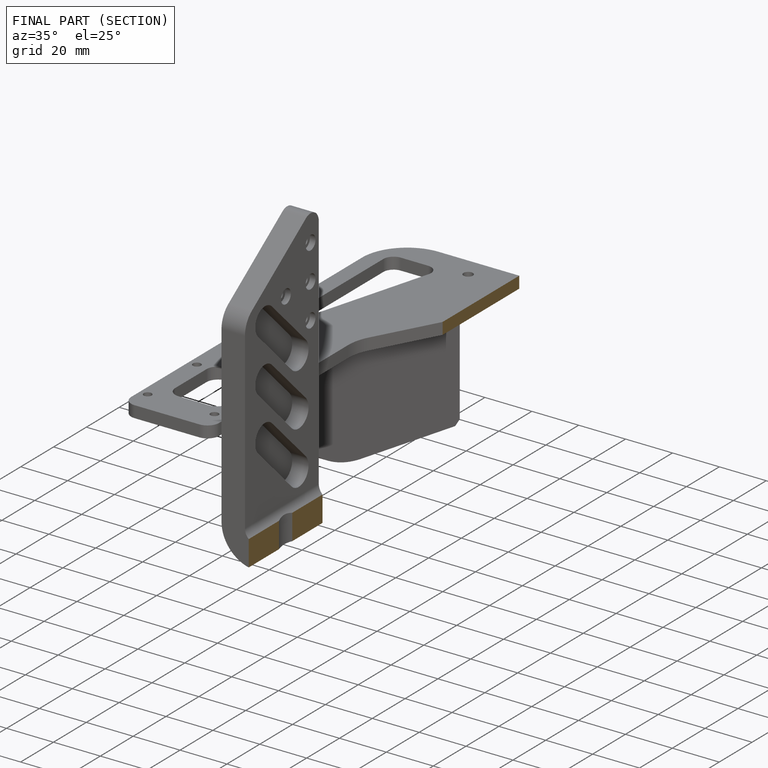
[diagram: finished part — half-section view (interior)]
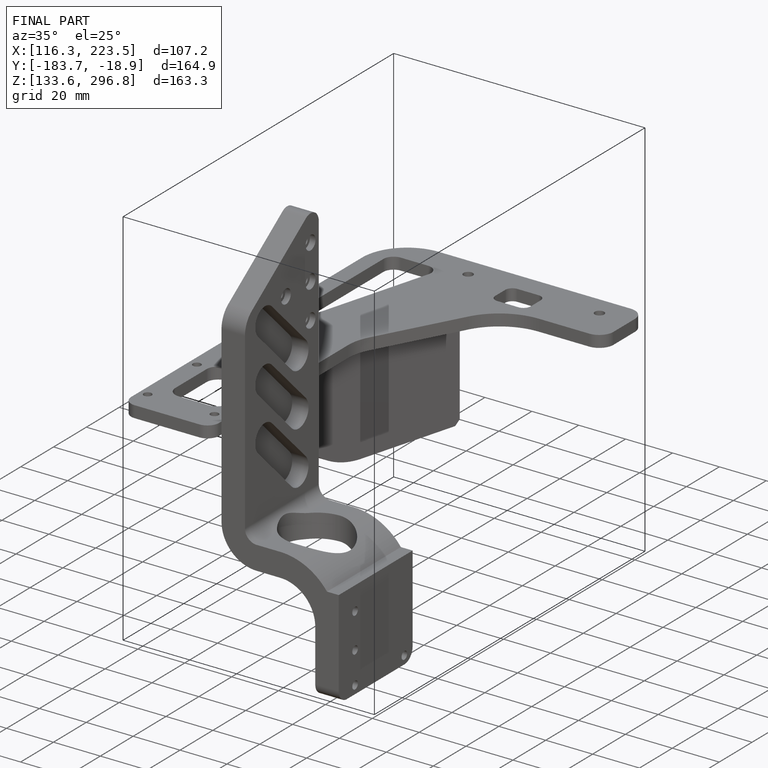
[diagram: finished part — iso view with bounding-box wireframe]
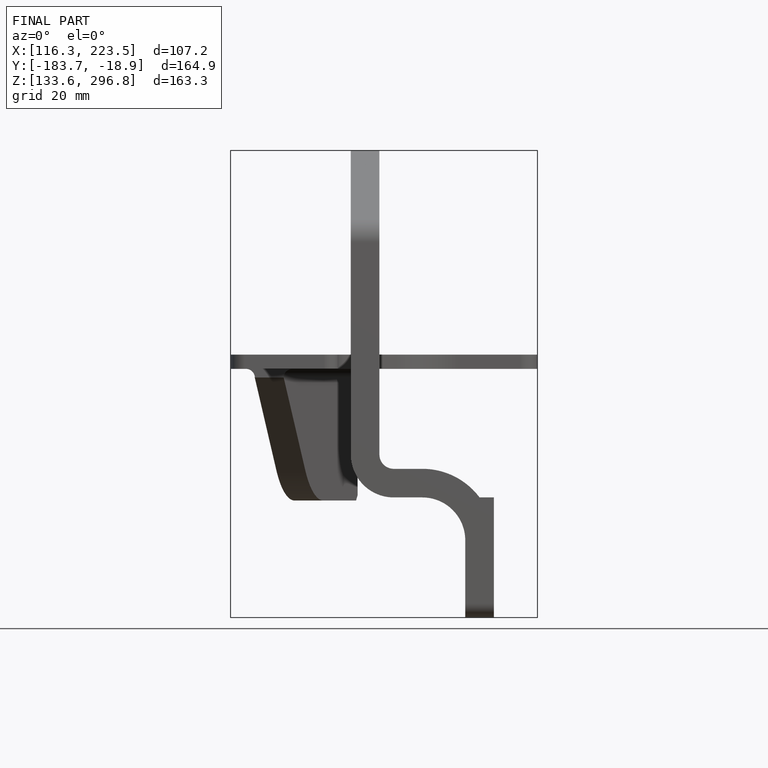
[diagram: finished part — front view with bounding-box wireframe]
